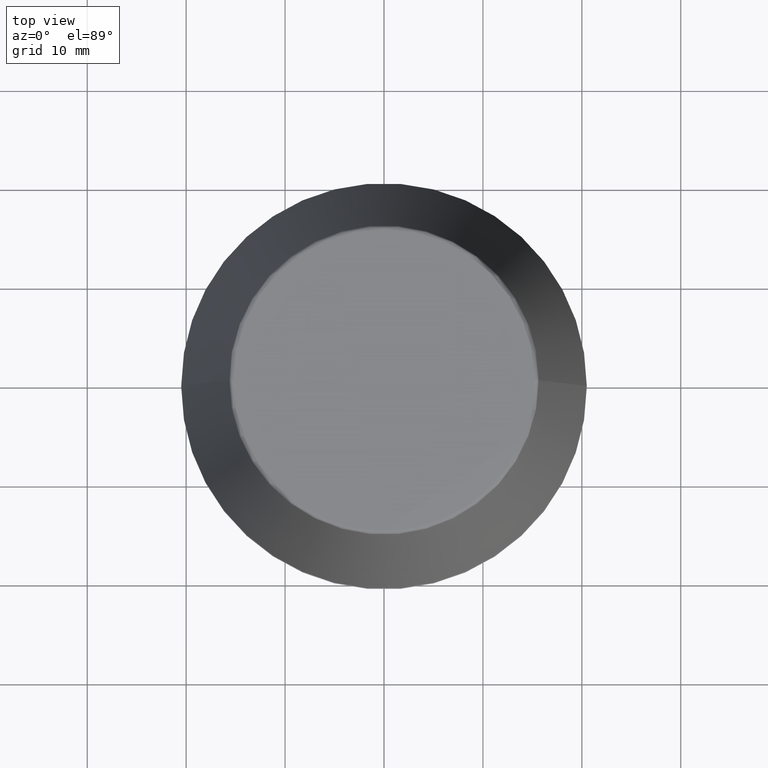
[diagram: clean part render]
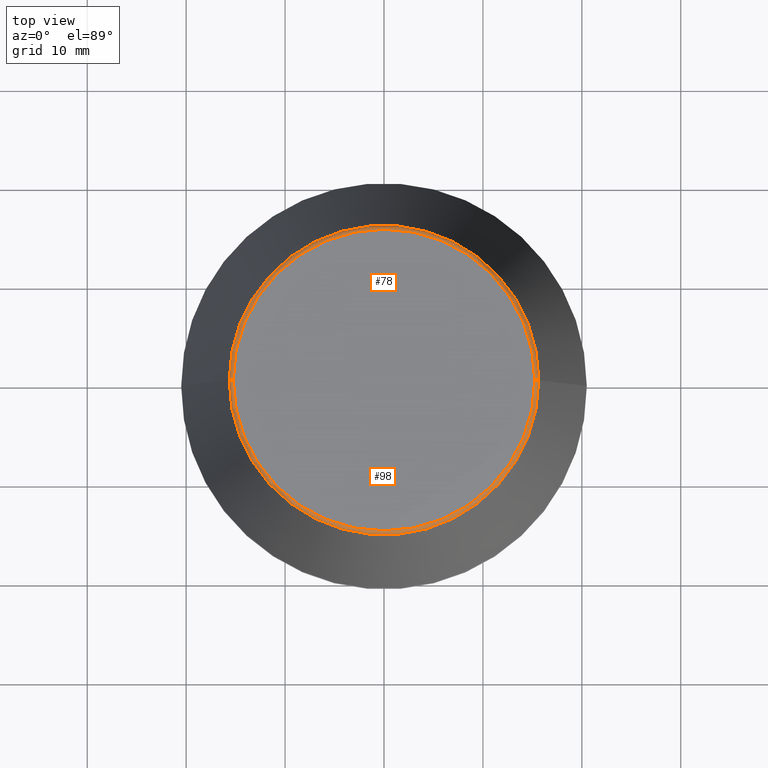
[diagram: same view with one multi-face feature highlighted, each face labeled with its STEP entity id]
A machine part, top view. The highlighted faces form ONE feature: a constant-radius fillet chain: 2 tangent blend faces with common blend radius 0.4 mm. The faces share edges in the B-rep.
Their STEP definitions:
[1] entity #78 (Torus):
#11 = DIRECTION ( 'NONE',  ( 1.000000000000000000, 0.0000000000000000000, 0.0000000000000000000 ) ) ;
#14 = DIRECTION ( 'NONE',  ( -0.0000000000000000000, -0.0000000000000000000, 1.000000000000000000 ) ) ;
#19 = ORIENTED_EDGE ( 'NONE', *, *, #233, .F. ) ;
#26 = DIRECTION ( 'NONE',  ( 0.0000000000000000000, -1.000000000000000000, 0.0000000000000000000 ) ) ;
#47 = AXIS2_PLACEMENT_3D ( 'NONE', #364, #26, #88 ) ;
#57 = CARTESIAN_POINT ( 'NONE',  ( 0.0000000000000000000, 0.0000000000000000000, 45.60000000000000100 ) ) ;
#59 = CARTESIAN_POINT ( 'NONE',  ( 0.0000000000000000000, 0.0000000000000000000, 45.65566924038402900 ) ) ;
#61 = DIRECTION ( 'NONE',  ( -0.0000000000000000000, -0.0000000000000000000, 1.000000000000000000 ) ) ;
#71 = ORIENTED_EDGE ( 'NONE', *, *, #132, .F. ) ;
#73 = EDGE_CURVE ( 'NONE', #89, #318, #329, .T. ) ;
#75 = AXIS2_PLACEMENT_3D ( 'NONE', #361, #294, #237 ) ;
#78 = ADVANCED_FACE ( 'NONE', ( #296 ), #316, .T. ) ;
#88 = DIRECTION ( 'NONE',  ( 0.0000000000000000000, 0.0000000000000000000, -1.000000000000000000 ) ) ;
#89 = VERTEX_POINT ( 'NONE', #227 ) ;
#99 = CARTESIAN_POINT ( 'NONE',  ( 15.24773554530077600, 0.0000000000000000000, 46.00000000000000000 ) ) ;
#131 = DIRECTION ( 'NONE',  ( 1.000000000000000000, 0.0000000000000000000, 0.0000000000000000000 ) ) ;
#132 = EDGE_CURVE ( 'NONE', #89, #323, #239, .T. ) ;
#198 = ORIENTED_EDGE ( 'NONE', *, *, #73, .T. ) ;
#219 = AXIS2_PLACEMENT_3D ( 'NONE', #59, #61, #328 ) ;
#227 = CARTESIAN_POINT ( 'NONE',  ( 15.64384277279740400, 2.213191991290356800E-015, 45.65566924038402900 ) ) ;
#232 = CIRCLE ( 'NONE', #75, 0.3999999999999975800 ) ;
#233 = EDGE_CURVE ( 'NONE', #323, #286, #257, .T. ) ;
#237 = DIRECTION ( 'NONE',  ( -1.000000000000000000, 1.224646799147353900E-016, 0.0000000000000000000 ) ) ;
#239 = CIRCLE ( 'NONE', #47, 0.3999999999999975800 ) ;
#241 = AXIS2_PLACEMENT_3D ( 'NONE', #57, #330, #131 ) ;
#248 = EDGE_CURVE ( 'NONE', #318, #286, #232, .T. ) ;
#257 = CIRCLE ( 'NONE', #265, 15.24773554530077600 ) ;
#265 = AXIS2_PLACEMENT_3D ( 'NONE', #301, #14, #11 ) ;
#286 = VERTEX_POINT ( 'NONE', #376 ) ;
#294 = DIRECTION ( 'NONE',  ( 1.224646799147353200E-016, 1.000000000000000000, 0.0000000000000000000 ) ) ;
#296 = FACE_OUTER_BOUND ( 'NONE', #383, .T. ) ;
#301 = CARTESIAN_POINT ( 'NONE',  ( 0.0000000000000000000, 0.0000000000000000000, 46.00000000000000000 ) ) ;
#316 = TOROIDAL_SURFACE ( 'NONE', #241, 15.24773554530077600, 0.3999999999999991900 ) ;
#318 = VERTEX_POINT ( 'NONE', #354 ) ;
#323 = VERTEX_POINT ( 'NONE', #99 ) ;
#324 = ORIENTED_EDGE ( 'NONE', *, *, #248, .T. ) ;
#328 = DIRECTION ( 'NONE',  ( 1.000000000000000000, 0.0000000000000000000, 0.0000000000000000000 ) ) ;
#329 = CIRCLE ( 'NONE', #219, 15.64384277279740400 ) ;
#330 = DIRECTION ( 'NONE',  ( -0.0000000000000000000, -0.0000000000000000000, 1.000000000000000000 ) ) ;
#354 = CARTESIAN_POINT ( 'NONE',  ( -15.64384277279740400, 0.0000000000000000000, 45.65566924038402900 ) ) ;
#361 = CARTESIAN_POINT ( 'NONE',  ( -15.24773554530077600, 1.867309052979791600E-015, 45.60000000000000100 ) ) ;
#364 = CARTESIAN_POINT ( 'NONE',  ( 15.24773554530077600, 0.0000000000000000000, 45.60000000000000100 ) ) ;
#376 = CARTESIAN_POINT ( 'NONE',  ( -15.24773554530077600, 1.891563625393435400E-015, 46.00000000000000000 ) ) ;
#383 = EDGE_LOOP ( 'NONE', ( #198, #324, #19, #71 ) ) ;
[2] entity #98 (Torus):
#4 = DIRECTION ( 'NONE',  ( -0.0000000000000000000, -0.0000000000000000000, 1.000000000000000000 ) ) ;
#22 = DIRECTION ( 'NONE',  ( 1.000000000000000000, 0.0000000000000000000, 0.0000000000000000000 ) ) ;
#26 = DIRECTION ( 'NONE',  ( 0.0000000000000000000, -1.000000000000000000, 0.0000000000000000000 ) ) ;
#39 = EDGE_CURVE ( 'NONE', #286, #323, #205, .T. ) ;
#47 = AXIS2_PLACEMENT_3D ( 'NONE', #364, #26, #88 ) ;
#68 = DIRECTION ( 'NONE',  ( 1.000000000000000000, 0.0000000000000000000, 0.0000000000000000000 ) ) ;
#75 = AXIS2_PLACEMENT_3D ( 'NONE', #361, #294, #237 ) ;
#81 = ORIENTED_EDGE ( 'NONE', *, *, #380, .T. ) ;
#85 = EDGE_LOOP ( 'NONE', ( #179, #81, #225, #220 ) ) ;
#88 = DIRECTION ( 'NONE',  ( 0.0000000000000000000, 0.0000000000000000000, -1.000000000000000000 ) ) ;
#89 = VERTEX_POINT ( 'NONE', #227 ) ;
#98 = ADVANCED_FACE ( 'NONE', ( #311 ), #304, .T. ) ;
#99 = CARTESIAN_POINT ( 'NONE',  ( 15.24773554530077600, 0.0000000000000000000, 46.00000000000000000 ) ) ;
#132 = EDGE_CURVE ( 'NONE', #89, #323, #239, .T. ) ;
#133 = DIRECTION ( 'NONE',  ( -0.0000000000000000000, -0.0000000000000000000, 1.000000000000000000 ) ) ;
#142 = CIRCLE ( 'NONE', #211, 15.64384277279740400 ) ;
#179 = ORIENTED_EDGE ( 'NONE', *, *, #248, .F. ) ;
#187 = CARTESIAN_POINT ( 'NONE',  ( 0.0000000000000000000, 0.0000000000000000000, 45.60000000000000100 ) ) ;
#205 = CIRCLE ( 'NONE', #347, 15.24773554530077600 ) ;
#211 = AXIS2_PLACEMENT_3D ( 'NONE', #250, #4, #68 ) ;
#213 = AXIS2_PLACEMENT_3D ( 'NONE', #187, #133, #22 ) ;
#220 = ORIENTED_EDGE ( 'NONE', *, *, #39, .F. ) ;
#225 = ORIENTED_EDGE ( 'NONE', *, *, #132, .T. ) ;
#227 = CARTESIAN_POINT ( 'NONE',  ( 15.64384277279740400, 2.213191991290356800E-015, 45.65566924038402900 ) ) ;
#232 = CIRCLE ( 'NONE', #75, 0.3999999999999975800 ) ;
#237 = DIRECTION ( 'NONE',  ( -1.000000000000000000, 1.224646799147353900E-016, 0.0000000000000000000 ) ) ;
#239 = CIRCLE ( 'NONE', #47, 0.3999999999999975800 ) ;
#248 = EDGE_CURVE ( 'NONE', #318, #286, #232, .T. ) ;
#250 = CARTESIAN_POINT ( 'NONE',  ( 0.0000000000000000000, 0.0000000000000000000, 45.65566924038402900 ) ) ;
#268 = CARTESIAN_POINT ( 'NONE',  ( 0.0000000000000000000, 0.0000000000000000000, 46.00000000000000000 ) ) ;
#286 = VERTEX_POINT ( 'NONE', #376 ) ;
#294 = DIRECTION ( 'NONE',  ( 1.224646799147353200E-016, 1.000000000000000000, 0.0000000000000000000 ) ) ;
#304 = TOROIDAL_SURFACE ( 'NONE', #213, 15.24773554530077600, 0.3999999999999991900 ) ;
#311 = FACE_OUTER_BOUND ( 'NONE', #85, .T. ) ;
#318 = VERTEX_POINT ( 'NONE', #354 ) ;
#323 = VERTEX_POINT ( 'NONE', #99 ) ;
#335 = DIRECTION ( 'NONE',  ( -0.0000000000000000000, -0.0000000000000000000, 1.000000000000000000 ) ) ;
#347 = AXIS2_PLACEMENT_3D ( 'NONE', #268, #335, #386 ) ;
#354 = CARTESIAN_POINT ( 'NONE',  ( -15.64384277279740400, 0.0000000000000000000, 45.65566924038402900 ) ) ;
#361 = CARTESIAN_POINT ( 'NONE',  ( -15.24773554530077600, 1.867309052979791600E-015, 45.60000000000000100 ) ) ;
#364 = CARTESIAN_POINT ( 'NONE',  ( 15.24773554530077600, 0.0000000000000000000, 45.60000000000000100 ) ) ;
#376 = CARTESIAN_POINT ( 'NONE',  ( -15.24773554530077600, 1.891563625393435400E-015, 46.00000000000000000 ) ) ;
#380 = EDGE_CURVE ( 'NONE', #318, #89, #142, .T. ) ;
#386 = DIRECTION ( 'NONE',  ( 1.000000000000000000, 0.0000000000000000000, 0.0000000000000000000 ) ) ;